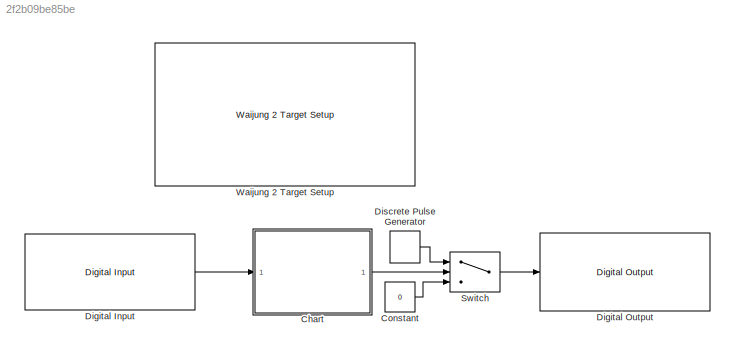
MODEL slx_2f2b09be85be
KIND model
CONFIG AbsTol = auto
CONFIG EnableMultiTasking = on
CONFIG FixedStep = auto
CONFIG MaxStep = auto
CONFIG MinStep = auto
CONFIG RelTol = 1e-3
CONFIG SampleTimeConstraint = Unconstrained
CONFIG SolverName = FixedStepDiscrete
CONFIG StartTime = 0.0
CONFIG StopTime = 10.0
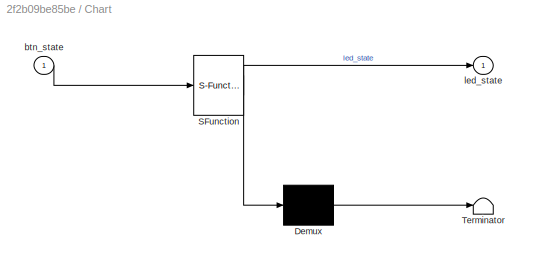
BLOCK [SubSystem] Chart
  ErrorFcn = Stateflow.Translate.translate
  PermitHierarchicalResolution = ExplicitOnly
  Ports = [1, 1]
  RequestExecContextInheritance = off
  SFBlockType = Chart
  TreatAsAtomicUnit = on
BLOCK [Demux] Chart/ Demux 
  Outputs = 1
  Ports = [1, 1]
BLOCK [S-Function] Chart/ SFunction 
  EnableBusSupport = off
  FunctionName = sf_sfun
  PortCounts = [1 2]
  Ports = [1, 2]
  SFcnIsStateOwnerBlock = off
  SFunctionDeploymentMode = off
  Tag = Stateflow S-Function 3
BLOCK [Terminator] Chart/ Terminator 
BLOCK [Inport] Chart/btn_state
BLOCK [Outport] Chart/led_state
BLOCK [Constant] Constant
  SampleTime = -1
  Value = 0
BLOCK [Reference] Digital Input  REF=esp32_io_lib/Digital Input
  Ports = [0, 1]
  SourceBlock = esp32_io_lib/Digital Input
  SourceProductName = Waijung 2 Blockset
  SourceType = esp32_digital_input
BLOCK [Reference] Digital Output  REF=esp32_io_lib/Digital Output
  Ports = [1]
  SourceBlock = esp32_io_lib/Digital Output
  SourceProductName = Waijung 2 Blockset
  SourceType = esp32_digital_output
BLOCK [DiscretePulseGenerator] Discrete Pulse Generator
  Period = 50
  Ports = [0, 1]
  PulseWidth = 25
  SampleTime = 0.01
BLOCK [Switch] Switch
  Criteria = u2 > Threshold
  InputSameDT = off
  SaturateOnIntegerOverflow = off
BLOCK [Reference] Waijung 2 Target Setup  REF=esp32_device_config_lib/Waijung 2 Target Setup
  Ports = []
  SourceBlock = esp32_device_config_lib/Waijung 2 Target Setup
  SourceProductName = Waijung 2 Blockset
  SourceType = esp32_target_setup
LINE Chart:1 -> Switch:2
LINE Constant:1 -> Switch:3
LINE Digital Input:1 -> Chart:1
LINE Discrete Pulse Generator:1 -> Switch:1
LINE Switch:1 -> Digital Output:1
CHART Chart states=2 transitions=3
  STATE_LABEL 'pattern1\nentry: led_state=0;'
  STATE_LABEL 'pattern2\nentry: led_state = 1;'
CHART  states=0 transitions=0
